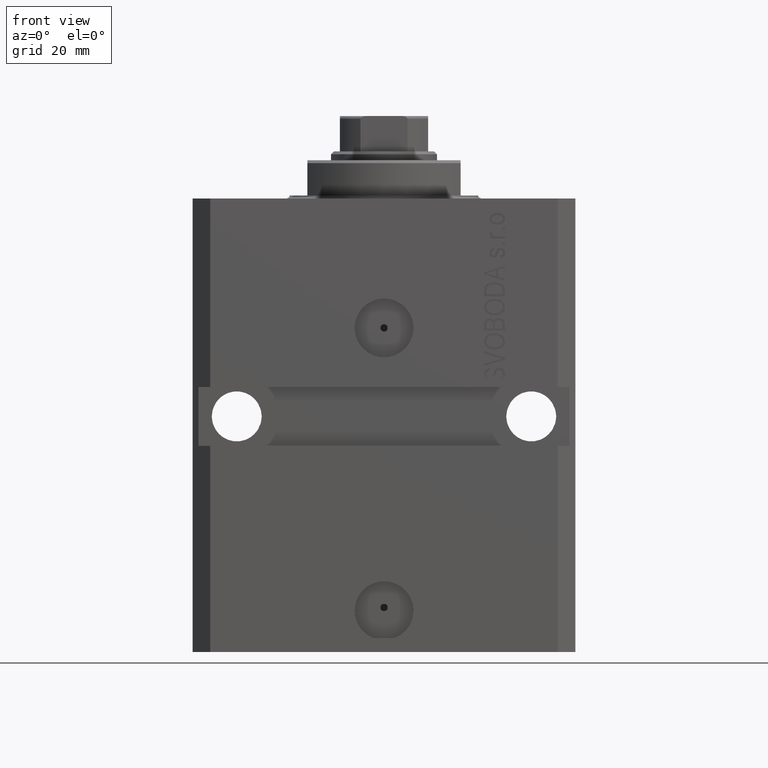
[diagram: clean part render]
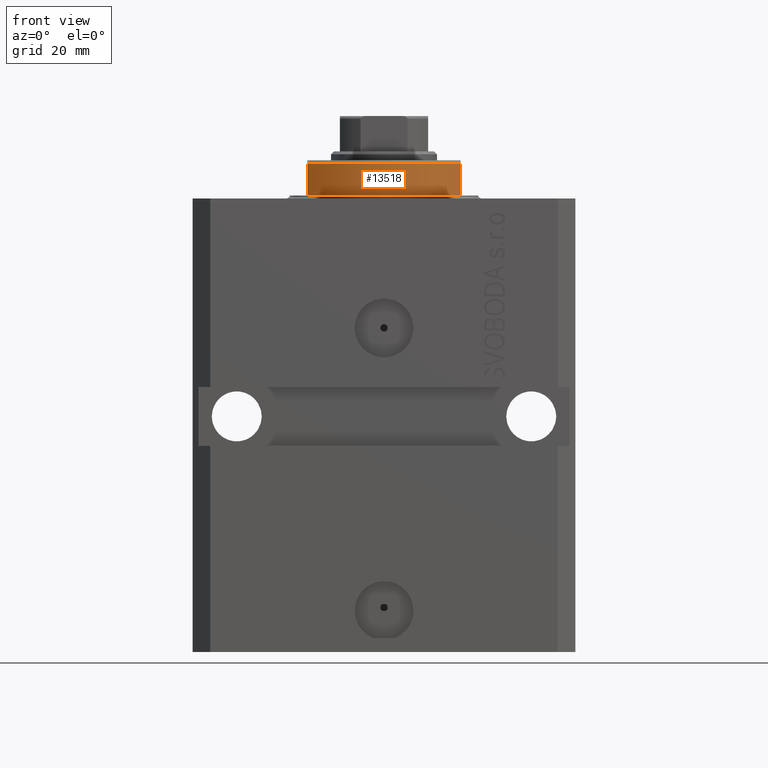
[diagram: same view with one face highlighted and labeled with its STEP entity id]
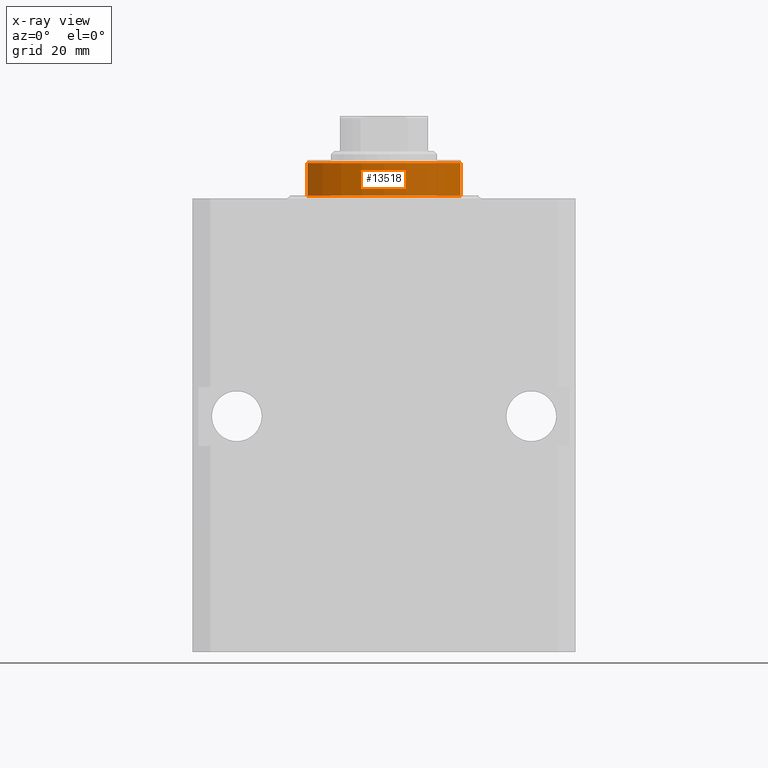
[diagram: x-ray of the same camera — body ghosted, the highlighted face saturated]
A machine part, front view. The second image highlights one B-rep face of the part: STEP entity #13518.
The next image is the same camera in x-ray: the body ghosted, the highlighted face saturated — about 0% of this face is hidden behind the body in this view.
In plain terms, the highlighted cylindrical surface (partial cylindrical patch) has radius 16 mm, axis along (0, 0, -1).
Its self-contained STEP definition (entity closure, byte-faithful):
#154 = AXIS2_PLACEMENT_3D ( 'NONE', #2608, #27699, #32029 ) ;
#722 = CYLINDRICAL_SURFACE ( 'NONE', #39993, 16.00000000000000000 ) ;
#1446 = LINE ( 'NONE', #13019, #43460 ) ;
#2608 = CARTESIAN_POINT ( 'NONE',  ( 0.000000000000000000, 0.000000000000000000, -6.000000000000023981 ) ) ;
#4033 = DIRECTION ( 'NONE',  ( -0.000000000000000000, -0.000000000000000000, -1.000000000000000000 ) ) ;
#5092 = CARTESIAN_POINT ( 'NONE',  ( -13.00000000000000000, -9.327379053088815652, -0.4999999999999995559 ) ) ;
#8062 = CARTESIAN_POINT ( 'NONE',  ( 13.00000000000000000, -9.327379053088813876, -6.500000000000000000 ) ) ;
#8705 = AXIS2_PLACEMENT_3D ( 'NONE', #33925, #4033, #33445 ) ;
#8818 = ORIENTED_EDGE ( 'NONE', *, *, #44523, .F. ) ;
#9583 = EDGE_LOOP ( 'NONE', ( #8818, #44976, #41522, #13874 ) ) ;
#11409 = CARTESIAN_POINT ( 'NONE',  ( 13.00000000000000000, -9.327379053088815652, -6.000000000000023981 ) ) ;
#13019 = CARTESIAN_POINT ( 'NONE',  ( -13.00000000000000000, -9.327379053088813876, -6.500000000000000000 ) ) ;
#13518 = ADVANCED_FACE ( 'NONE', ( #40985 ), #722, .T. ) ;
#13874 = ORIENTED_EDGE ( 'NONE', *, *, #32582, .T. ) ;
#14965 = DIRECTION ( 'NONE',  ( 1.000000000000000000, 0.000000000000000000, 0.000000000000000000 ) ) ;
#15305 = DIRECTION ( 'NONE',  ( 0.000000000000000000, 0.000000000000000000, -1.000000000000000000 ) ) ;
#15439 = CARTESIAN_POINT ( 'NONE',  ( 0.000000000000000000, 0.000000000000000000, -6.500000000000000000 ) ) ;
#15548 = CIRCLE ( 'NONE', #154, 16.00000000000000000 ) ;
#16401 = DIRECTION ( 'NONE',  ( 0.000000000000000000, 0.000000000000000000, -1.000000000000000000 ) ) ;
#17839 = CARTESIAN_POINT ( 'NONE',  ( -13.00000000000000000, -9.327379053088815652, -6.000000000000023981 ) ) ;
#21717 = EDGE_CURVE ( 'NONE', #41530, #45826, #24890, .T. ) ;
#23983 = VERTEX_POINT ( 'NONE', #17839 ) ;
#24243 = VECTOR ( 'NONE', #15305, 1000.000000000000000 ) ;
#24890 = CIRCLE ( 'NONE', #8705, 16.00000000000000000 ) ;
#25573 = VERTEX_POINT ( 'NONE', #11409 ) ;
#27699 = DIRECTION ( 'NONE',  ( 0.000000000000000000, 0.000000000000000000, 1.000000000000000000 ) ) ;
#32029 = DIRECTION ( 'NONE',  ( -1.000000000000000000, 0.000000000000000000, 0.000000000000000000 ) ) ;
#32582 = EDGE_CURVE ( 'NONE', #23983, #25573, #15548, .T. ) ;
#32882 = LINE ( 'NONE', #8062, #24243 ) ;
#33445 = DIRECTION ( 'NONE',  ( 1.000000000000000000, 0.000000000000000000, 0.000000000000000000 ) ) ;
#33925 = CARTESIAN_POINT ( 'NONE',  ( 0.000000000000000000, 0.000000000000000000, -0.4999999999999995559 ) ) ;
#36290 = CARTESIAN_POINT ( 'NONE',  ( 13.00000000000000000, -9.327379053088815652, -0.4999999999999995559 ) ) ;
#39993 = AXIS2_PLACEMENT_3D ( 'NONE', #15439, #44862, #14965 ) ;
#40985 = FACE_OUTER_BOUND ( 'NONE', #9583, .T. ) ;
#41522 = ORIENTED_EDGE ( 'NONE', *, *, #43151, .T. ) ;
#41530 = VERTEX_POINT ( 'NONE', #36290 ) ;
#43151 = EDGE_CURVE ( 'NONE', #45826, #23983, #1446, .T. ) ;
#43460 = VECTOR ( 'NONE', #16401, 1000.000000000000000 ) ;
#44523 = EDGE_CURVE ( 'NONE', #41530, #25573, #32882, .T. ) ;
#44862 = DIRECTION ( 'NONE',  ( -0.000000000000000000, -0.000000000000000000, 1.000000000000000000 ) ) ;
#44976 = ORIENTED_EDGE ( 'NONE', *, *, #21717, .T. ) ;
#45826 = VERTEX_POINT ( 'NONE', #5092 ) ;